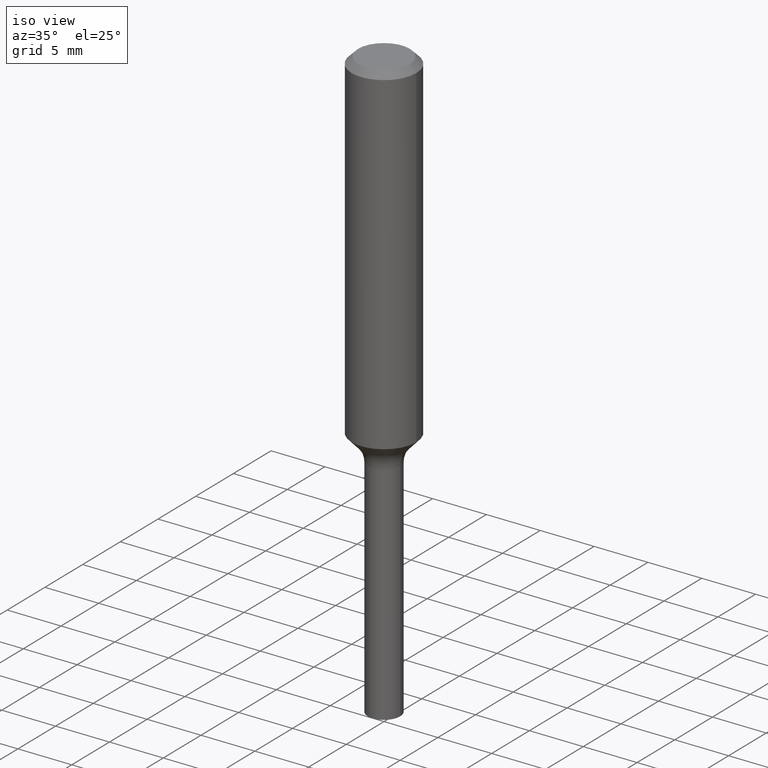
[diagram: clean part render]
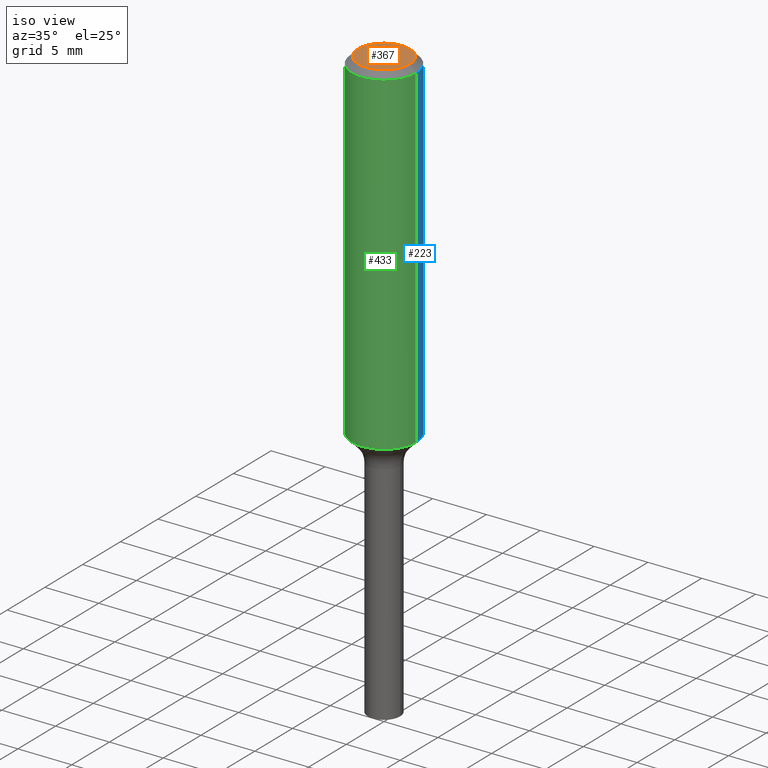
[diagram: same view with three faces highlighted in distinct colors, each labeled with its STEP entity id]
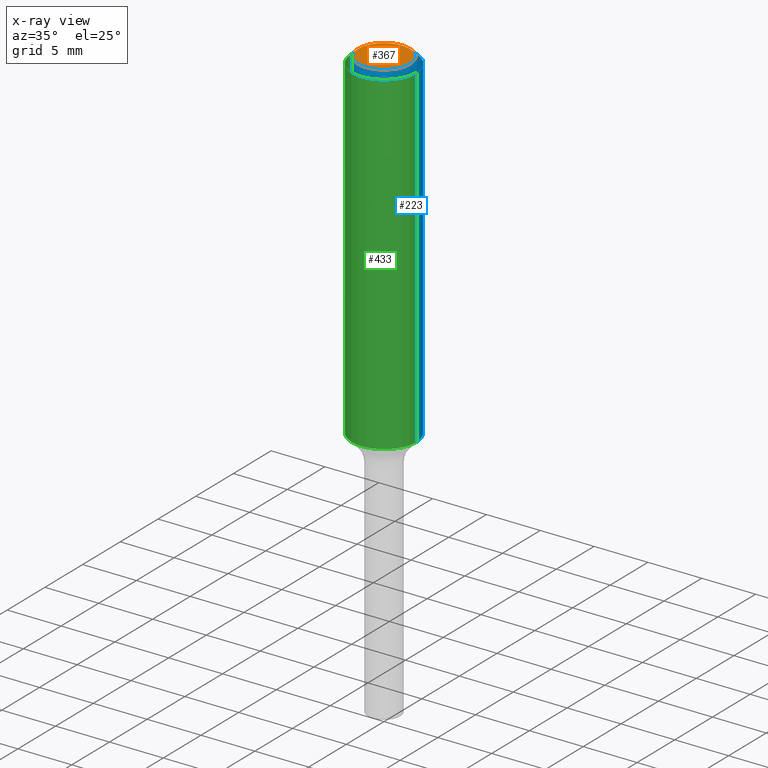
[diagram: x-ray of the same camera — body ghosted, the three highlighted faces saturated]
A machine part, iso view with three faces highlighted in distinct colors.
The next image is the same camera in x-ray (body ghosted, the three faces saturated) — at least one of them is partly hidden behind the body in this view.
Their STEP definitions:

[orange] entity #367 — the highlighted planar face has unit normal (0, -0, -1).
#17 = CARTESIAN_POINT ( 'NONE',  ( -0.09447999999999998066, 7.009847083995354710E-16, -3.085620075132147757E-17 ) ) ;
#21 = CARTESIAN_POINT ( 'NONE',  ( 7.545787641473140628E-46, -1.077338491108201769E-31, -3.085620075131671975E-17 ) ) ;
#31 = CIRCLE ( 'NONE', #470, 0.09447999999999998066 ) ;
#39 = CARTESIAN_POINT ( 'NONE',  ( 0.09447999999999998066, -7.704367267948738690E-16, -3.085620075131172158E-17 ) ) ;
#49 = DIRECTION ( 'NONE',  ( -2.445468806185136597E-29, 3.491481338843145583E-15, 1.000000000000000000 ) ) ;
#50 = CIRCLE ( 'NONE', #270, 0.09447999999999998066 ) ;
#65 = ORIENTED_EDGE ( 'NONE', *, *, #374, .T. ) ;
#87 = DIRECTION ( 'NONE',  ( 2.438088387897960049E-29, -3.491481338843145188E-15, -1.000000000000000000 ) ) ;
#122 = CARTESIAN_POINT ( 'NONE',  ( 3.772893820736570314E-46, -5.386692455541008845E-32, -1.542810037565835988E-17 ) ) ;
#126 = PLANE ( 'NONE',  #256 ) ;
#134 = DIRECTION ( 'NONE',  ( -2.445468806185136597E-29, 3.491481338843145583E-15, 1.000000000000000000 ) ) ;
#172 = ORIENTED_EDGE ( 'NONE', *, *, #396, .T. ) ;
#177 = DIRECTION ( 'NONE',  ( 1.000000000000000000, -6.982962677686267499E-15, 4.875432709231658792E-29 ) ) ;
#256 = AXIS2_PLACEMENT_3D ( 'NONE', #122, #87, #452 ) ;
#270 = AXIS2_PLACEMENT_3D ( 'NONE', #335, #49, #373 ) ;
#335 = CARTESIAN_POINT ( 'NONE',  ( 7.545787641473140628E-46, -1.077338491108201769E-31, -3.085620075131671975E-17 ) ) ;
#364 = EDGE_LOOP ( 'NONE', ( #172, #65 ) ) ;
#367 = ADVANCED_FACE ( 'NONE', ( #376 ), #126, .F. ) ;
#373 = DIRECTION ( 'NONE',  ( 1.000000000000000000, -6.982962677686267499E-15, 4.875432709231658792E-29 ) ) ;
#374 = EDGE_CURVE ( 'NONE', #438, #375, #50, .T. ) ;
#375 = VERTEX_POINT ( 'NONE', #17 ) ;
#376 = FACE_OUTER_BOUND ( 'NONE', #364, .T. ) ;
#396 = EDGE_CURVE ( 'NONE', #375, #438, #31, .T. ) ;
#438 = VERTEX_POINT ( 'NONE', #39 ) ;
#452 = DIRECTION ( 'NONE',  ( -1.000000000000000000, 6.982962677686265922E-15, -4.876176775795935793E-29 ) ) ;
#470 = AXIS2_PLACEMENT_3D ( 'NONE', #21, #134, #177 ) ;

[blue] entity #223 — the highlighted cylindrical surface (partial cylindrical patch) has radius 2.9997 mm, axis along (-0, 0, 1).
#2 = VERTEX_POINT ( 'NONE', #159 ) ;
#3 = DIRECTION ( 'NONE',  ( 1.000000000000000000, -6.982962677686266711E-15, 0.000000000000000000 ) ) ;
#76 = CARTESIAN_POINT ( 'NONE',  ( -0.1180999999999999966, -1.373023306245422013E-15, -0.02362000000000014088 ) ) ;
#92 = VERTEX_POINT ( 'NONE', #76 ) ;
#99 = CARTESIAN_POINT ( 'NONE',  ( 0.000000000000000000, 0.000000000000000000, 0.000000000000000000 ) ) ;
#105 = LINE ( 'NONE', #260, #194 ) ;
#106 = VECTOR ( 'NONE', #336, 39.37007874015748143 ) ;
#128 = ORIENTED_EDGE ( 'NONE', *, *, #427, .F. ) ;
#135 = LINE ( 'NONE', #183, #106 ) ;
#141 = EDGE_CURVE ( 'NONE', #485, #92, #135, .T. ) ;
#144 = DIRECTION ( 'NONE',  ( -2.445468806185136597E-29, 3.491481338843145583E-15, 1.000000000000000000 ) ) ;
#159 = CARTESIAN_POINT ( 'NONE',  ( 0.1180999999999999966, -9.071566814582237199E-16, -0.02362000000000014088 ) ) ;
#183 = CARTESIAN_POINT ( 'NONE',  ( -0.1181000000000000660, 8.391509709326787887E-16, -5.809262341591047287E-30 ) ) ;
#190 = CARTESIAN_POINT ( 'NONE',  ( -0.1181000000000001493, -3.502728794200047555E-15, -1.243563789623847393 ) ) ;
#194 = VECTOR ( 'NONE', #249, 39.37007874015748143 ) ;
#199 = ORIENTED_EDGE ( 'NONE', *, *, #435, .F. ) ;
#208 = ORIENTED_EDGE ( 'NONE', *, *, #315, .T. ) ;
#213 = VERTEX_POINT ( 'NONE', #455 ) ;
#223 = ADVANCED_FACE ( 'NONE', ( #471 ), #266, .T. ) ;
#224 = CIRCLE ( 'NONE', #515, 0.1180999999999999966 ) ;
#249 = DIRECTION ( 'NONE',  ( -2.445468806185136877E-29, 3.491481338843145188E-15, 1.000000000000000000 ) ) ;
#260 = CARTESIAN_POINT ( 'NONE',  ( 0.1181000000000000660, -8.246878922347485584E-16, 5.758764772215003944E-30 ) ) ;
#266 = CYLINDRICAL_SURFACE ( 'NONE', #482, 0.1181000000000000660 ) ;
#282 = CIRCLE ( 'NONE', #483, 0.1181000000000001493 ) ;
#290 = CARTESIAN_POINT ( 'NONE',  ( 5.776197320209327532E-31, -8.246878922347559293E-17, -0.02362000000000014088 ) ) ;
#295 = DIRECTION ( 'NONE',  ( -2.445468806185136597E-29, 3.491481338843145583E-15, 1.000000000000000000 ) ) ;
#315 = EDGE_CURVE ( 'NONE', #213, #485, #282, .T. ) ;
#324 = EDGE_LOOP ( 'NONE', ( #208, #344, #199, #128 ) ) ;
#336 = DIRECTION ( 'NONE',  ( -2.445468806185136877E-29, 3.491481338843145188E-15, 1.000000000000000000 ) ) ;
#341 = DIRECTION ( 'NONE',  ( 1.000000000000000000, -6.982962677686264344E-15, 0.000000000000000000 ) ) ;
#344 = ORIENTED_EDGE ( 'NONE', *, *, #141, .T. ) ;
#348 = CARTESIAN_POINT ( 'NONE',  ( 3.041096456026494880E-29, -4.341879765132726936E-15, -1.243563789623847393 ) ) ;
#359 = DIRECTION ( 'NONE',  ( -2.445468806185136597E-29, 3.491481338843145583E-15, 1.000000000000000000 ) ) ;
#427 = EDGE_CURVE ( 'NONE', #213, #2, #105, .T. ) ;
#428 = DIRECTION ( 'NONE',  ( 1.000000000000000000, -6.982962677686266711E-15, 4.876176775795936353E-29 ) ) ;
#435 = EDGE_CURVE ( 'NONE', #2, #92, #224, .T. ) ;
#455 = CARTESIAN_POINT ( 'NONE',  ( 0.1181000000000001493, -5.166567657367476776E-15, -1.243563789623847393 ) ) ;
#471 = FACE_OUTER_BOUND ( 'NONE', #324, .T. ) ;
#482 = AXIS2_PLACEMENT_3D ( 'NONE', #99, #295, #428 ) ;
#483 = AXIS2_PLACEMENT_3D ( 'NONE', #348, #144, #341 ) ;
#485 = VERTEX_POINT ( 'NONE', #190 ) ;
#515 = AXIS2_PLACEMENT_3D ( 'NONE', #290, #359, #3 ) ;

[green] entity #433 — the highlighted cylindrical surface (partial cylindrical patch) has radius 2.9997 mm, axis along (-0, 0, 1).
#2 = VERTEX_POINT ( 'NONE', #159 ) ;
#30 = AXIS2_PLACEMENT_3D ( 'NONE', #382, #129, #424 ) ;
#34 = AXIS2_PLACEMENT_3D ( 'NONE', #391, #394, #379 ) ;
#76 = CARTESIAN_POINT ( 'NONE',  ( -0.1180999999999999966, -1.373023306245422013E-15, -0.02362000000000014088 ) ) ;
#92 = VERTEX_POINT ( 'NONE', #76 ) ;
#105 = LINE ( 'NONE', #260, #194 ) ;
#106 = VECTOR ( 'NONE', #336, 39.37007874015748143 ) ;
#107 = DIRECTION ( 'NONE',  ( 1.000000000000000000, -6.982962677686266711E-15, 0.000000000000000000 ) ) ;
#112 = CARTESIAN_POINT ( 'NONE',  ( 5.776197320209327532E-31, -8.246878922347559293E-17, -0.02362000000000014088 ) ) ;
#129 = DIRECTION ( 'NONE',  ( -2.445468806185136597E-29, 3.491481338843145583E-15, 1.000000000000000000 ) ) ;
#135 = LINE ( 'NONE', #183, #106 ) ;
#137 = EDGE_LOOP ( 'NONE', ( #381, #259, #264, #226 ) ) ;
#141 = EDGE_CURVE ( 'NONE', #485, #92, #135, .T. ) ;
#154 = DIRECTION ( 'NONE',  ( -2.445468806185136597E-29, 3.491481338843145583E-15, 1.000000000000000000 ) ) ;
#157 = CYLINDRICAL_SURFACE ( 'NONE', #34, 0.1181000000000000660 ) ;
#159 = CARTESIAN_POINT ( 'NONE',  ( 0.1180999999999999966, -9.071566814582237199E-16, -0.02362000000000014088 ) ) ;
#183 = CARTESIAN_POINT ( 'NONE',  ( -0.1181000000000000660, 8.391509709326787887E-16, -5.809262341591047287E-30 ) ) ;
#190 = CARTESIAN_POINT ( 'NONE',  ( -0.1181000000000001493, -3.502728794200047555E-15, -1.243563789623847393 ) ) ;
#194 = VECTOR ( 'NONE', #249, 39.37007874015748143 ) ;
#213 = VERTEX_POINT ( 'NONE', #455 ) ;
#226 = ORIENTED_EDGE ( 'NONE', *, *, #474, .F. ) ;
#249 = DIRECTION ( 'NONE',  ( -2.445468806185136877E-29, 3.491481338843145188E-15, 1.000000000000000000 ) ) ;
#259 = ORIENTED_EDGE ( 'NONE', *, *, #389, .T. ) ;
#260 = CARTESIAN_POINT ( 'NONE',  ( 0.1181000000000000660, -8.246878922347485584E-16, 5.758764772215003944E-30 ) ) ;
#264 = ORIENTED_EDGE ( 'NONE', *, *, #427, .T. ) ;
#332 = AXIS2_PLACEMENT_3D ( 'NONE', #112, #154, #107 ) ;
#336 = DIRECTION ( 'NONE',  ( -2.445468806185136877E-29, 3.491481338843145188E-15, 1.000000000000000000 ) ) ;
#363 = FACE_OUTER_BOUND ( 'NONE', #137, .T. ) ;
#379 = DIRECTION ( 'NONE',  ( 1.000000000000000000, -6.982962677686266711E-15, 4.876176775795936353E-29 ) ) ;
#381 = ORIENTED_EDGE ( 'NONE', *, *, #141, .F. ) ;
#382 = CARTESIAN_POINT ( 'NONE',  ( 3.041096456026494880E-29, -4.341879765132726936E-15, -1.243563789623847393 ) ) ;
#389 = EDGE_CURVE ( 'NONE', #485, #213, #406, .T. ) ;
#391 = CARTESIAN_POINT ( 'NONE',  ( 0.000000000000000000, 0.000000000000000000, 0.000000000000000000 ) ) ;
#394 = DIRECTION ( 'NONE',  ( -2.445468806185136597E-29, 3.491481338843145583E-15, 1.000000000000000000 ) ) ;
#406 = CIRCLE ( 'NONE', #30, 0.1181000000000001493 ) ;
#424 = DIRECTION ( 'NONE',  ( 1.000000000000000000, -6.982962677686264344E-15, 0.000000000000000000 ) ) ;
#427 = EDGE_CURVE ( 'NONE', #213, #2, #105, .T. ) ;
#433 = ADVANCED_FACE ( 'NONE', ( #363 ), #157, .T. ) ;
#455 = CARTESIAN_POINT ( 'NONE',  ( 0.1181000000000001493, -5.166567657367476776E-15, -1.243563789623847393 ) ) ;
#456 = CIRCLE ( 'NONE', #332, 0.1180999999999999966 ) ;
#474 = EDGE_CURVE ( 'NONE', #92, #2, #456, .T. ) ;
#485 = VERTEX_POINT ( 'NONE', #190 ) ;